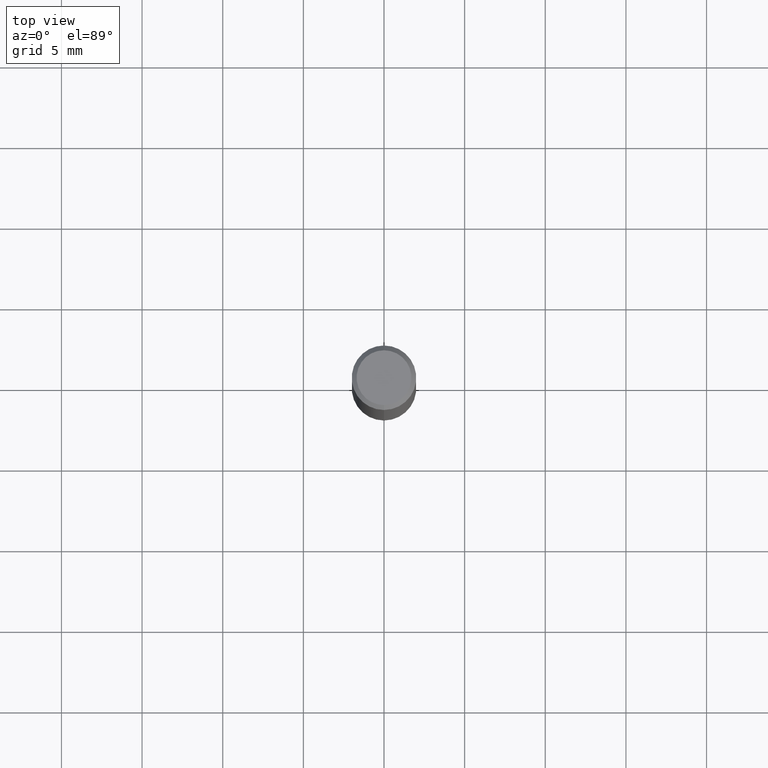
[diagram: clean part render]
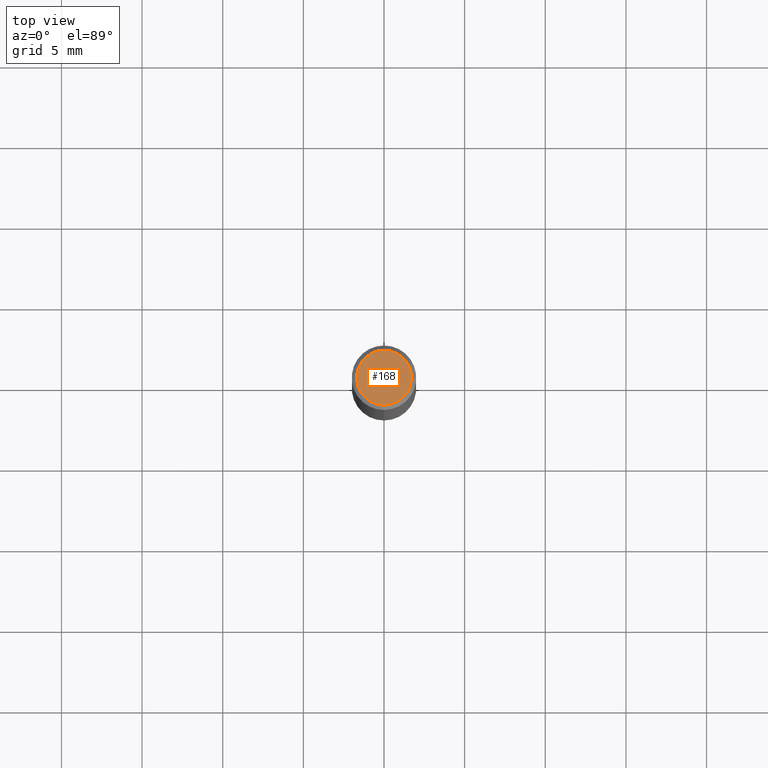
[diagram: same view with one face highlighted and labeled with its STEP entity id]
A machine part, top view. The second image highlights one B-rep face of the part: STEP entity #168.
In plain terms, the highlighted planar face has unit normal (-0, 0, 1).
Its self-contained STEP definition (entity closure, byte-faithful):
#110=EDGE_CURVE('',#206,#174,#254,.T.);
#152=EDGE_CURVE('',#174,#206,#302,.T.);
#168=ADVANCED_FACE('',(#319),#320,.T.);
#174=VERTEX_POINT('',#327);
#206=VERTEX_POINT('',#364);
#254=CIRCLE('',#410,1.7);
#302=CIRCLE('',#469,1.7);
#319=FACE_OUTER_BOUND('',#491,.T.);
#320=PLANE('',#492);
#327=CARTESIAN_POINT('',(2.08183080149804E-016,-1.7,0.0));
#364=CARTESIAN_POINT('',(0.0,1.7,0.0));
#410=AXIS2_PLACEMENT_3D('',#591,#592,#593);
#469=AXIS2_PLACEMENT_3D('',#644,#645,#646);
#491=EDGE_LOOP('',(#671,#672));
#492=AXIS2_PLACEMENT_3D('',#673,#674,#675);
#591=CARTESIAN_POINT('',(0.0,0.0,0.0));
#592=DIRECTION('',(0.0,0.0,-1.0));
#593=DIRECTION('',(0.0,1.0,0.0));
#644=CARTESIAN_POINT('',(0.0,0.0,0.0));
#645=DIRECTION('',(0.0,0.0,-1.0));
#646=DIRECTION('',(0.0,1.0,0.0));
#671=ORIENTED_EDGE('',*,*,#110,.F.);
#672=ORIENTED_EDGE('',*,*,#152,.F.);
#673=CARTESIAN_POINT('',(0.0,0.85,0.0));
#674=DIRECTION('',(-0.0,0.0,1.0));
#675=DIRECTION('',(0.0,-1.0,0.0));